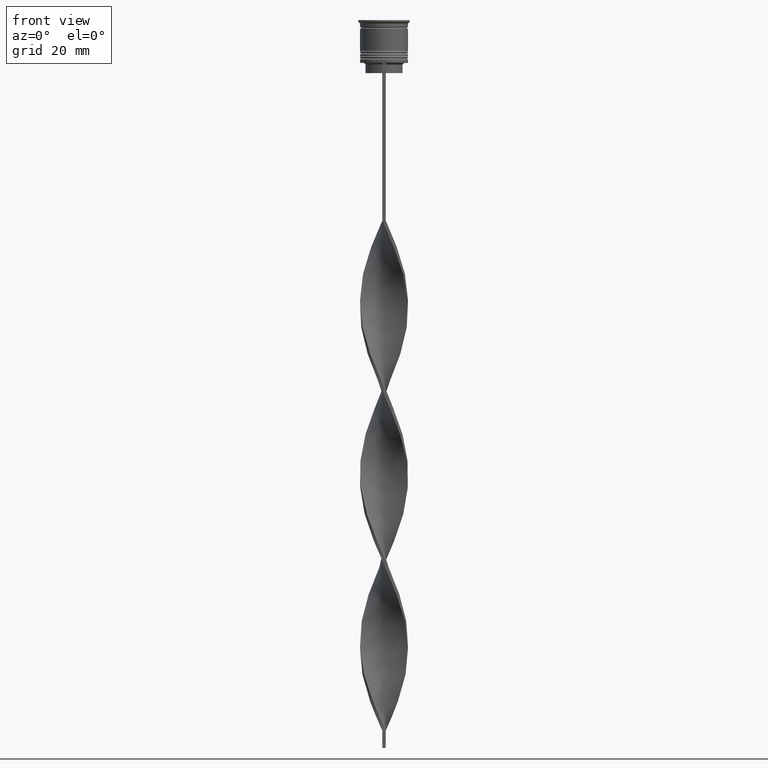
[diagram: clean part render]
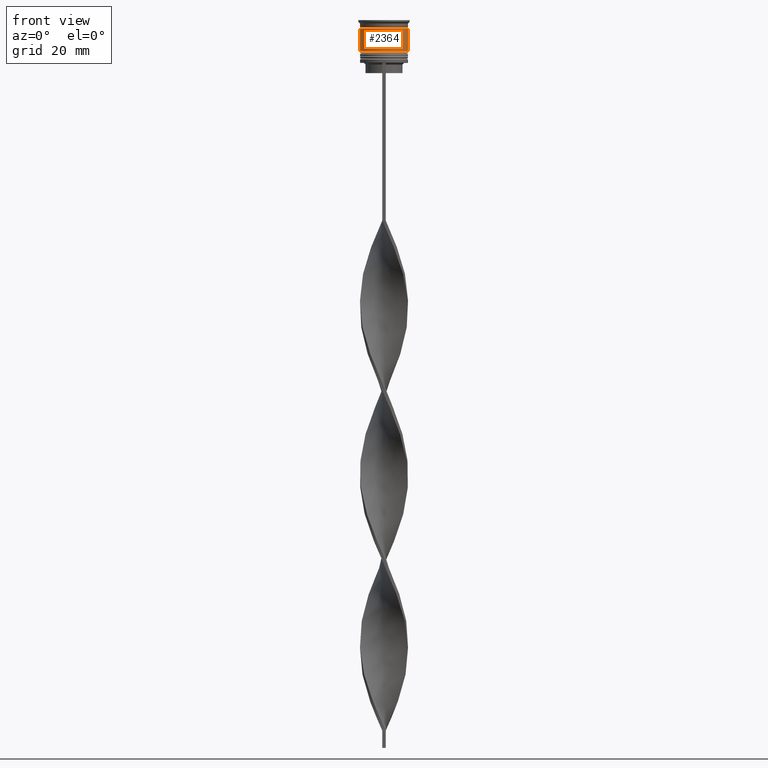
[diagram: same view with one face highlighted and labeled with its STEP entity id]
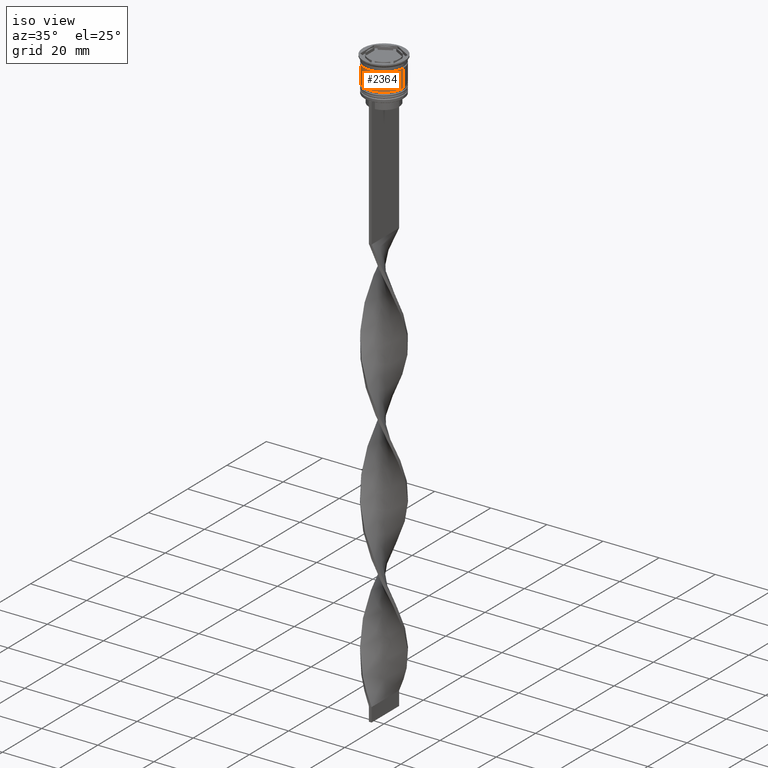
[diagram: same view with one face highlighted and labeled with its STEP entity id]
A machine part, front view. The second image highlights one B-rep face of the part: STEP entity #2364.
A second angle (iso view) of the same face is appended — the face is thin or edge-on in the first view.
In plain terms, the highlighted cylindrical surface (edge-blend (fillet) strip) has radius 7 mm, axis along (-0, -0, 1).
Its self-contained STEP definition (entity closure, byte-faithful):
#160 = ORIENTED_EDGE ( 'NONE', *, *, #2545, .T. ) ;
#197 = CARTESIAN_POINT ( 'NONE',  ( 0.000000000000000000, 0.000000000000000000, -2.500000000000000444 ) ) ;
#286 = CARTESIAN_POINT ( 'NONE',  ( 6.999999999999999112, 0.000000000000000000, 0.000000000000000000 ) ) ;
#287 = EDGE_LOOP ( 'NONE', ( #435, #2852, #160, #2864 ) ) ;
#435 = ORIENTED_EDGE ( 'NONE', *, *, #2883, .F. ) ;
#466 = AXIS2_PLACEMENT_3D ( 'NONE', #197, #3700, #1012 ) ;
#502 = DIRECTION ( 'NONE',  ( -0.000000000000000000, -0.000000000000000000, 1.000000000000000000 ) ) ;
#551 = EDGE_CURVE ( 'NONE', #1372, #2417, #1715, .T. ) ;
#683 = CARTESIAN_POINT ( 'NONE',  ( 0.000000000000000000, 0.000000000000000000, -9.000000000000001776 ) ) ;
#798 = DIRECTION ( 'NONE',  ( -0.000000000000000000, -0.000000000000000000, 1.000000000000000000 ) ) ;
#937 = DIRECTION ( 'NONE',  ( -0.000000000000000000, -0.000000000000000000, 1.000000000000000000 ) ) ;
#1012 = DIRECTION ( 'NONE',  ( 1.000000000000000000, 0.000000000000000000, 0.000000000000000000 ) ) ;
#1024 = DIRECTION ( 'NONE',  ( -0.000000000000000000, -0.000000000000000000, 1.000000000000000000 ) ) ;
#1099 = AXIS2_PLACEMENT_3D ( 'NONE', #683, #1024, #1577 ) ;
#1251 = LINE ( 'NONE', #286, #1831 ) ;
#1372 = VERTEX_POINT ( 'NONE', #2349 ) ;
#1577 = DIRECTION ( 'NONE',  ( 1.000000000000000000, 0.000000000000000000, 0.000000000000000000 ) ) ;
#1669 = CARTESIAN_POINT ( 'NONE',  ( 0.000000000000000000, 0.000000000000000000, 0.000000000000000000 ) ) ;
#1715 = CIRCLE ( 'NONE', #466, 6.999999999999997335 ) ;
#1727 = CARTESIAN_POINT ( 'NONE',  ( -6.999999999999999112, 8.572527594031472204E-16, 0.000000000000000000 ) ) ;
#1831 = VECTOR ( 'NONE', #937, 1000.000000000000000 ) ;
#2246 = DIRECTION ( 'NONE',  ( 1.000000000000000000, 0.000000000000000000, 0.000000000000000000 ) ) ;
#2263 = AXIS2_PLACEMENT_3D ( 'NONE', #1669, #502, #2246 ) ;
#2281 = CARTESIAN_POINT ( 'NONE',  ( 6.999999999999997335, 0.000000000000000000, -2.500000000000000444 ) ) ;
#2349 = CARTESIAN_POINT ( 'NONE',  ( -6.999999999999997335, 8.572527594031471218E-16, -2.500000000000000444 ) ) ;
#2364 = ADVANCED_FACE ( 'NONE', ( #3747 ), #2851, .T. ) ;
#2417 = VERTEX_POINT ( 'NONE', #2281 ) ;
#2457 = VERTEX_POINT ( 'NONE', #3038 ) ;
#2545 = EDGE_CURVE ( 'NONE', #3602, #2417, #1251, .T. ) ;
#2592 = LINE ( 'NONE', #1727, #3095 ) ;
#2851 = CYLINDRICAL_SURFACE ( 'NONE', #2263, 6.999999999999999112 ) ;
#2852 = ORIENTED_EDGE ( 'NONE', *, *, #3274, .T. ) ;
#2864 = ORIENTED_EDGE ( 'NONE', *, *, #551, .F. ) ;
#2883 = EDGE_CURVE ( 'NONE', #2457, #1372, #2592, .T. ) ;
#3030 = CIRCLE ( 'NONE', #1099, 7.000000000000000888 ) ;
#3038 = CARTESIAN_POINT ( 'NONE',  ( -7.000000000000000888, 8.572527594031474176E-16, -9.000000000000001776 ) ) ;
#3085 = CARTESIAN_POINT ( 'NONE',  ( 7.000000000000000888, 0.000000000000000000, -9.000000000000001776 ) ) ;
#3095 = VECTOR ( 'NONE', #798, 1000.000000000000000 ) ;
#3274 = EDGE_CURVE ( 'NONE', #2457, #3602, #3030, .T. ) ;
#3602 = VERTEX_POINT ( 'NONE', #3085 ) ;
#3700 = DIRECTION ( 'NONE',  ( -0.000000000000000000, -0.000000000000000000, 1.000000000000000000 ) ) ;
#3747 = FACE_OUTER_BOUND ( 'NONE', #287, .T. ) ;